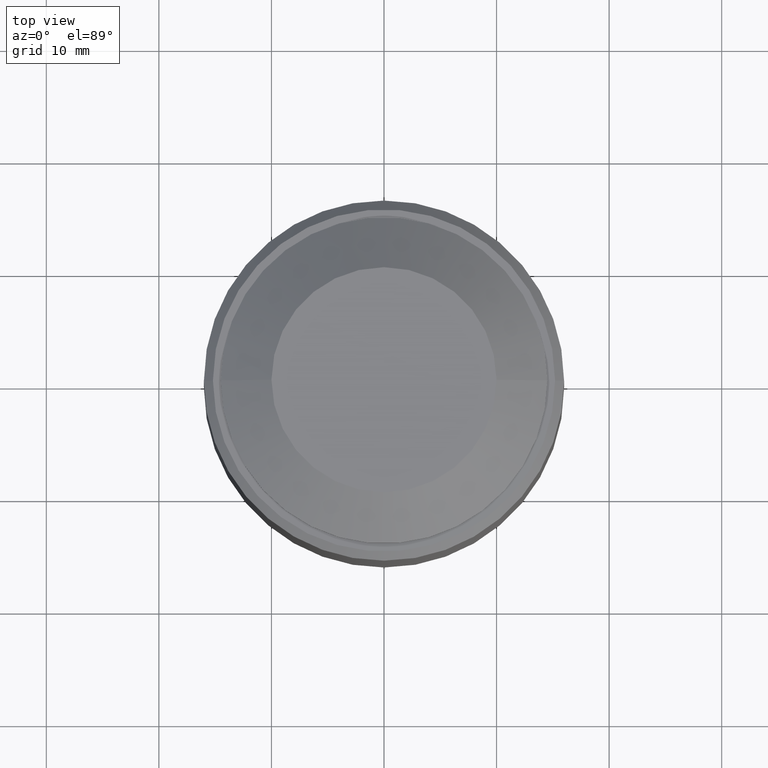
[diagram: clean part render]
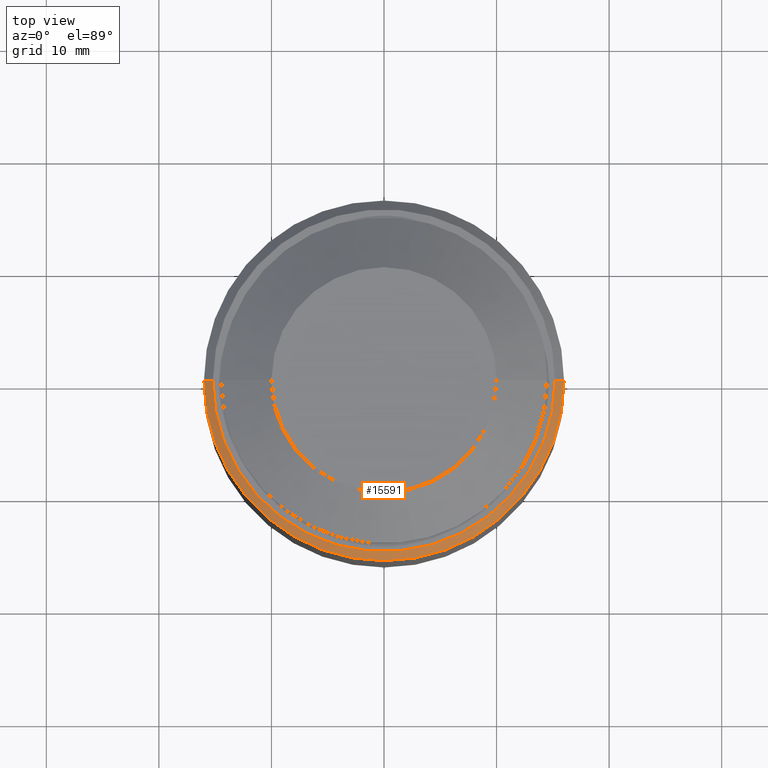
[diagram: same view with one face highlighted and labeled with its STEP entity id]
A machine part, top view. The second image highlights one B-rep face of the part: STEP entity #15591.
In plain terms, the highlighted conical surface has half-angle 45 deg.
Its self-contained STEP definition (entity closure, byte-faithful):
#503 = CARTESIAN_POINT ( 'NONE',  ( 15.19999999999999929, 1.861463134703977092E-15, 42.70000000000000284 ) ) ;
#1837 = DIRECTION ( 'NONE',  ( 0.000000000000000000, 0.000000000000000000, -1.000000000000000000 ) ) ;
#2538 = EDGE_CURVE ( 'NONE', #12084, #10017, #13701, .T. ) ;
#4938 = LINE ( 'NONE', #503, #11721 ) ;
#5240 = DIRECTION ( 'NONE',  ( 0.000000000000000000, 0.000000000000000000, 1.000000000000000000 ) ) ;
#6140 = EDGE_CURVE ( 'NONE', #9008, #10017, #19045, .T. ) ;
#6591 = ORIENTED_EDGE ( 'NONE', *, *, #16797, .F. ) ;
#7646 = CARTESIAN_POINT ( 'NONE',  ( -15.19999999999999929, 0.000000000000000000, 42.70000000000000284 ) ) ;
#8342 = DIRECTION ( 'NONE',  ( -1.000000000000000000, 0.000000000000000000, 0.000000000000000000 ) ) ;
#9008 = VERTEX_POINT ( 'NONE', #22447 ) ;
#9270 = CARTESIAN_POINT ( 'NONE',  ( -15.99999999999999289, 0.000000000000000000, 41.89999999999999858 ) ) ;
#10017 = VERTEX_POINT ( 'NONE', #9270 ) ;
#10666 = CARTESIAN_POINT ( 'NONE',  ( 0.000000000000000000, 0.000000000000000000, 41.89999999999999858 ) ) ;
#11721 = VECTOR ( 'NONE', #16168, 999.9999999999998863 ) ;
#12084 = VERTEX_POINT ( 'NONE', #23677 ) ;
#12889 = DIRECTION ( 'NONE',  ( 1.000000000000000000, 0.000000000000000000, 0.000000000000000000 ) ) ;
#13558 = ORIENTED_EDGE ( 'NONE', *, *, #24424, .F. ) ;
#13701 = CIRCLE ( 'NONE', #21275, 16.00000000000000000 ) ;
#15071 = CONICAL_SURFACE ( 'NONE', #28322, 15.19999999999999929, 0.7853981633974433940 ) ;
#15268 = CARTESIAN_POINT ( 'NONE',  ( 15.19999999999999929, 1.910449006669870914E-15, 42.70000000000000284 ) ) ;
#15591 = ADVANCED_FACE ( 'NONE', ( #22096 ), #15071, .T. ) ;
#16168 = DIRECTION ( 'NONE',  ( 0.7071067811865441310, 8.659560562354890950E-17, -0.7071067811865510144 ) ) ;
#16797 = EDGE_CURVE ( 'NONE', #25156, #12084, #4938, .T. ) ;
#17443 = VECTOR ( 'NONE', #23773, 999.9999999999998863 ) ;
#19045 = LINE ( 'NONE', #7646, #17443 ) ;
#19360 = AXIS2_PLACEMENT_3D ( 'NONE', #27730, #5240, #25501 ) ;
#21183 = EDGE_LOOP ( 'NONE', ( #6591, #13558, #25115, #22581 ) ) ;
#21275 = AXIS2_PLACEMENT_3D ( 'NONE', #10666, #24744, #12889 ) ;
#22096 = FACE_OUTER_BOUND ( 'NONE', #21183, .T. ) ;
#22447 = CARTESIAN_POINT ( 'NONE',  ( -15.19999999999999929, 0.000000000000000000, 42.70000000000000284 ) ) ;
#22581 = ORIENTED_EDGE ( 'NONE', *, *, #2538, .F. ) ;
#23677 = CARTESIAN_POINT ( 'NONE',  ( 15.99999999999999289, 1.959434878635764737E-15, 41.89999999999999858 ) ) ;
#23773 = DIRECTION ( 'NONE',  ( -0.7071067811865441310, 0.000000000000000000, -0.7071067811865510144 ) ) ;
#24424 = EDGE_CURVE ( 'NONE', #9008, #25156, #24550, .T. ) ;
#24550 = CIRCLE ( 'NONE', #19360, 15.19999999999999929 ) ;
#24744 = DIRECTION ( 'NONE',  ( 0.000000000000000000, 0.000000000000000000, -1.000000000000000000 ) ) ;
#25115 = ORIENTED_EDGE ( 'NONE', *, *, #6140, .T. ) ;
#25156 = VERTEX_POINT ( 'NONE', #15268 ) ;
#25501 = DIRECTION ( 'NONE',  ( 1.000000000000000000, 0.000000000000000000, 0.000000000000000000 ) ) ;
#27730 = CARTESIAN_POINT ( 'NONE',  ( 0.000000000000000000, 0.000000000000000000, 42.70000000000000284 ) ) ;
#28322 = AXIS2_PLACEMENT_3D ( 'NONE', #28613, #1837, #8342 ) ;
#28613 = CARTESIAN_POINT ( 'NONE',  ( 0.000000000000000000, 0.000000000000000000, 42.70000000000000284 ) ) ;